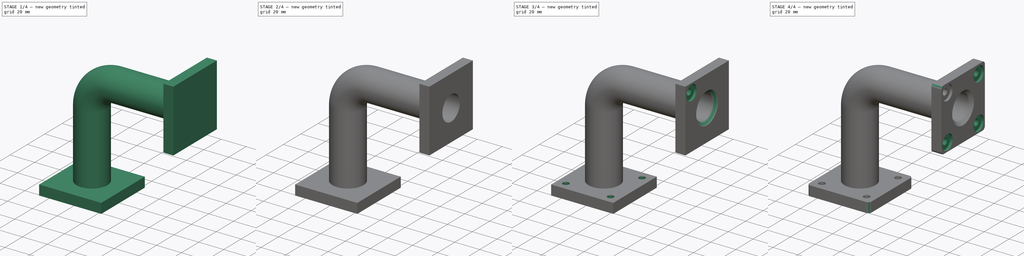
[diagram: build sequence overview — one tinted view per stage of 4, left to right]
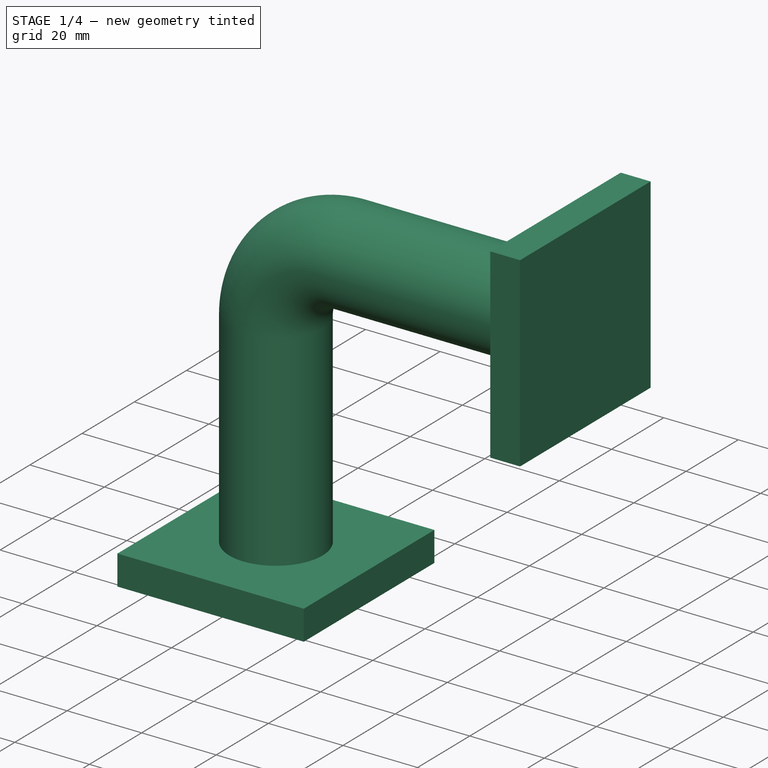
[diagram: stage 1 of 4 — iso view after this stage's code; geometry added in this stage tinted green]
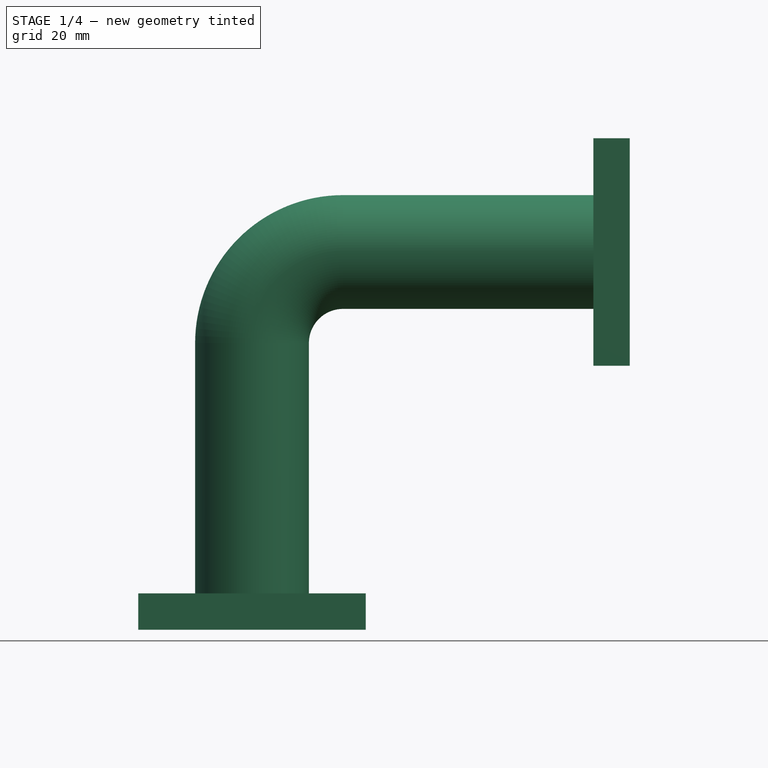
[diagram: stage 1 of 4 — front view after this stage's code; geometry added in this stage tinted green]
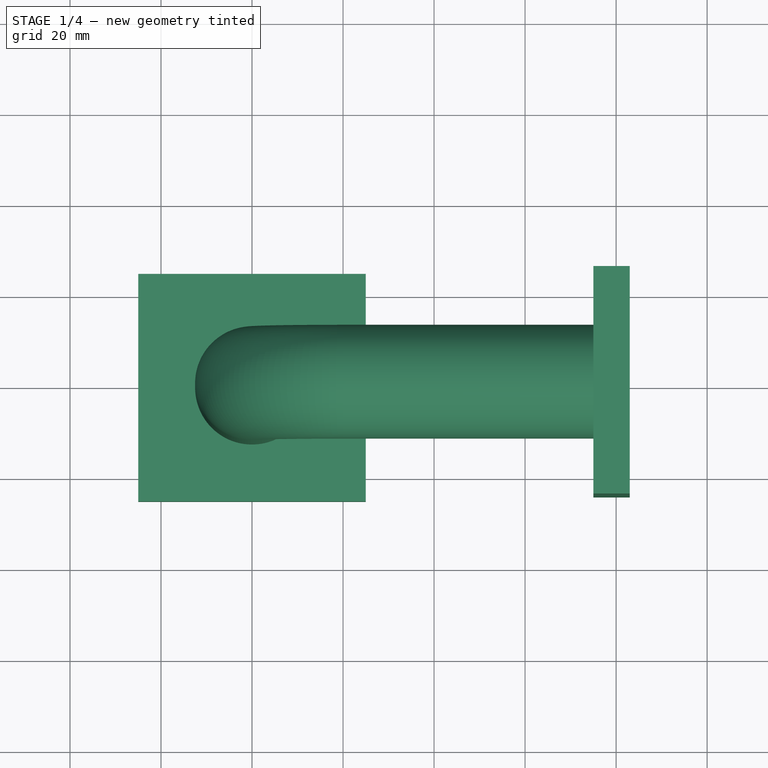
[diagram: stage 1 of 4 — top view after this stage's code; geometry added in this stage tinted green]
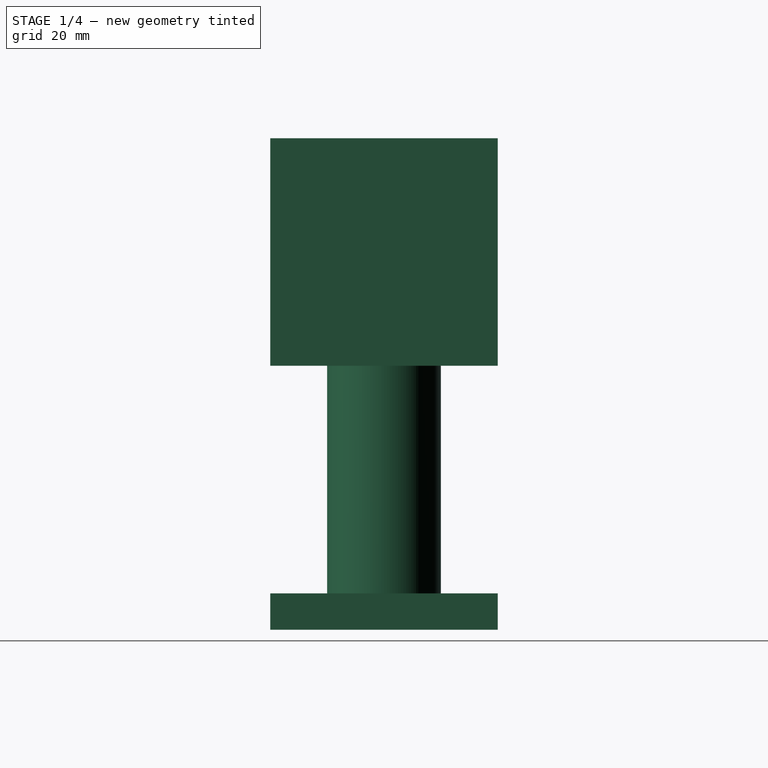
[diagram: stage 1 of 4 — right view after this stage's code; geometry added in this stage tinted green]
FCSTD DOCUMENT  (FreeCAD 1.0R39319 (Git))
Label: Elbow_Pipe_using_spreedsheet
License: All rights reserved
LicenseURL: https://en.wikipedia.org/wiki/All_rights_reserved
objects: Sketcher::SketchObject×12, PartDesign::Pocket×4, PartDesign::Pad×2, PartDesign::Chamfer×2, PartDesign::Hole×2, Spreadsheet::Sheet×1, PartDesign::AdditivePipe×1, PartDesign::PolarPattern×1, PartDesign::Fillet×1, PartDesign::Body×1
note: 63 computed .brp shape members not serialized (recipe doc carries the construction recipe); baked Part::Feature solids carry a one-line shape summary decoded from their .brp

FEATURE [Spreadsheet::Sheet] Spreadsheet  label="Dimention_sheet"
  cells = A1='flange_side; B1(flange_side)=50; A2='flange_thickness; B2(flange_thickness)=8; A3='flange_center_innercircle; B3(flange_center_innercircle)=20; A4='flange_center_outercircle; B4(flange_center_outercircle)=25; A5='mount_Thrededhole_dia; B5(mount_Thrededhole_dia)=5; A6='mountcounterbore_dia; B6(mountcounterbore_dia)=12; A7='pipe_pathdis; B7(pipe_pathdis)=75; A8='pipe_path_fillet_rad; B8(pipe_path_fillet_rad)=20; A9='mount_hole_centerdis; B9(mount_hole_centerdis)=7; A10='mountcounterbore_depth; B10(mountcounterbore_depth)==0.25 * B2; A11='mounthole_depth; B11(mounthole_depth)==B2; A12='pipe_depth; B12(pipe_depth)==B2; A13='flange_fillet_radius; B13(flange_fillet_radius)=2.5; A14='pipe_center_chamfer_dis; B14(pipe_center_chamfer_dis)=2.5
FEATURE [Sketcher::SketchObject] Sketch
  ArcFitTolerance = 1e-06
  AttachmentSupport = -> [XY_Plane]
  FullyConstrained = true
  MakeInternals = false
  MapMode = 5
  expr: Constraints[11] = <<Dimention_sheet>>.flange_side
  sketch-geometry (5):
    g0: LineSegment StartX=25 StartY=-25 StartZ=0 EndX=25 EndY=25 EndZ=0
    g1: LineSegment StartX=25 StartY=25 StartZ=0 EndX=-25 EndY=25 EndZ=0
    g2: LineSegment StartX=-25 StartY=25 StartZ=0 EndX=-25 EndY=-25 EndZ=0
    g3: LineSegment StartX=-25 StartY=-25 StartZ=0 EndX=25 EndY=-25 EndZ=0
    g4: GeomPoint [constr] X=0 Y=0 Z=0
  constraints (12):
    c: Coincident(g0,g1)
    c: Coincident(g1,g2)
    c: Coincident(g2,g3)
    c: Coincident(g3,g0)
    c: Vertical(g0)
    c: Vertical(g2)
    c: Horizontal(g1)
    c: Horizontal(g3)
    c: Symmetric(g2,g0,g4)
    c: Coincident(g4,g-1)
    c: Equal(g2,g1)
    c: DistanceY(g2,g2) = 50
FEATURE [PartDesign::Pad] Pad
  Direction = (0,0,1)
  Length = 8
  Length2 = 10
  Profile = -> Sketch
  ReferenceAxis = -> Sketch [N_Axis]
  Refine = true
  Suppressed = false
  Type = 0
  expr: Length = <<Dimention_sheet>>.flange_thickness
FEATURE [Sketcher::SketchObject] Sketch001
  ArcFitTolerance = 1e-06
  AttachmentSupport = -> [Pad]
  FullyConstrained = true
  MakeInternals = false
  MapMode = 5
  Placement = pos=(0,0,8) rot=(0,0,1;0rad)
  expr: Constraints[2] = <<Dimention_sheet>>.flange_center_outercircle
  expr: Constraints[3] = <<Dimention_sheet>>.flange_center_innercircle
  sketch-geometry (2):
    g0: Circle CenterX=0 CenterY=0 CenterZ=0 NormalX=0 NormalY=0 NormalZ=1 AngleXU=0 Radius=12.5
    g1: Circle CenterX=0 CenterY=0 CenterZ=0 NormalX=0 NormalY=0 NormalZ=1 AngleXU=0 Radius=10
  constraints (4):
    c: Coincident(g0,g-1)
    c: Coincident(g1,g0)
    c: Diameter(g0) = 25
    c: Diameter(g1) = 20
FEATURE [Sketcher::SketchObject] Sketch002
  ArcFitTolerance = 1e-06
  AttachmentSupport = -> [XZ_Plane]
  ExternalGeometry = -> [Sketch001]
  FullyConstrained = true
  MakeInternals = false
  MapMode = 5
  Placement = pos=(0,0,0) rot=(1,0,0;1.5708rad)
  expr: Constraints[3] = <<Dimention_sheet>>.pipe_pathdis
  expr: Constraints[8] = <<Dimention_sheet>>.pipe_pathdis
  expr: Constraints[9] = <<Dimention_sheet>>.pipe_path_fillet_rad
  sketch-geometry (4):
    g0: LineSegment StartX=3e-16 StartY=8 StartZ=0 EndX=0 EndY=63 EndZ=0
    g1: LineSegment StartX=20 StartY=83 StartZ=0 EndX=75 EndY=83 EndZ=0
    g2: ArcOfCircle CenterX=20 CenterY=63 CenterZ=0 NormalX=0 NormalY=0 NormalZ=1 AngleXU=0 Radius=20 StartAngle=1.5708 EndAngle=3.14159
    g3: GeomPoint [constr] X=0 Y=83 Z=0
  constraints (10):
    c: Symmetric(g-3,g-3,g0)
    c: PointOnObject(g3,g-2)
    c: Horizontal(g1)
    c: DistanceY(g0,g3) = 75
    c: PointOnObject(g3,g1)
    c: PointOnObject(g3,g0)
    c: Tangent(g1,g2) = 1.5708
    c: Tangent(g0,g2) = 1.5708
    c: DistanceX(g3,g1) = 75
    c: Radius(g2) = 20
FEATURE [PartDesign::AdditivePipe] AdditivePipe
  AuxilleryCurvelinear = true
  AuxillerySpineTangent = false
  BaseFeature = -> Pad
  Binormal = (0,0,0)
  Mode = 0
  Profile = -> Sketch001
  Refine = true
  Spine = -> Sketch002
  SpineTangent = false
  Suppressed = false
  Transformation = 0
  Transition = 0
FEATURE [Sketcher::SketchObject] Sketch003
  ArcFitTolerance = 1e-06
  AttachmentSupport = -> [AdditivePipe]
  ExternalGeometry = -> [AdditivePipe]
  FullyConstrained = true
  MakeInternals = false
  MapMode = 5
  Placement = pos=(75,0,0) rot=(0.57735,0.57735,0.57735;2.0944rad)
  expr: Constraints[11] = <<Dimention_sheet>>.flange_side
  sketch-geometry (5):
    g0: LineSegment StartX=25 StartY=58 StartZ=0 EndX=25 EndY=108 EndZ=0
    g1: LineSegment StartX=25 StartY=108 StartZ=0 EndX=-25 EndY=108 EndZ=0
    g2: LineSegment StartX=-25 StartY=108 StartZ=0 EndX=-25 EndY=58 EndZ=0
    g3: LineSegment StartX=-25 StartY=58 StartZ=0 EndX=25 EndY=58 EndZ=0
    g4: GeomPoint [constr] X=1.68e-14 Y=83 Z=0
  constraints (12):
    c: Coincident(g0,g1)
    c: Coincident(g1,g2)
    c: Coincident(g2,g3)
    c: Coincident(g3,g0)
    c: Vertical(g0)
    c: Vertical(g2)
    c: Horizontal(g1)
    c: Horizontal(g3)
    c: Symmetric(g2,g0,g4)
    c: Coincident(g4,g-3)
    c: Equal(g1,g2)
    c: DistanceY(g2,g2) = 50
FEATURE [PartDesign::Pad] Pad001
  BaseFeature = -> AdditivePipe
  Direction = (1,0,0)
  Length = 8
  Length2 = 10
  Profile = -> Sketch003
  ReferenceAxis = -> Sketch003 [N_Axis]
  Refine = true
  Suppressed = false
  Type = 0
  expr: Length = <<Dimention_sheet>>.flange_thickness
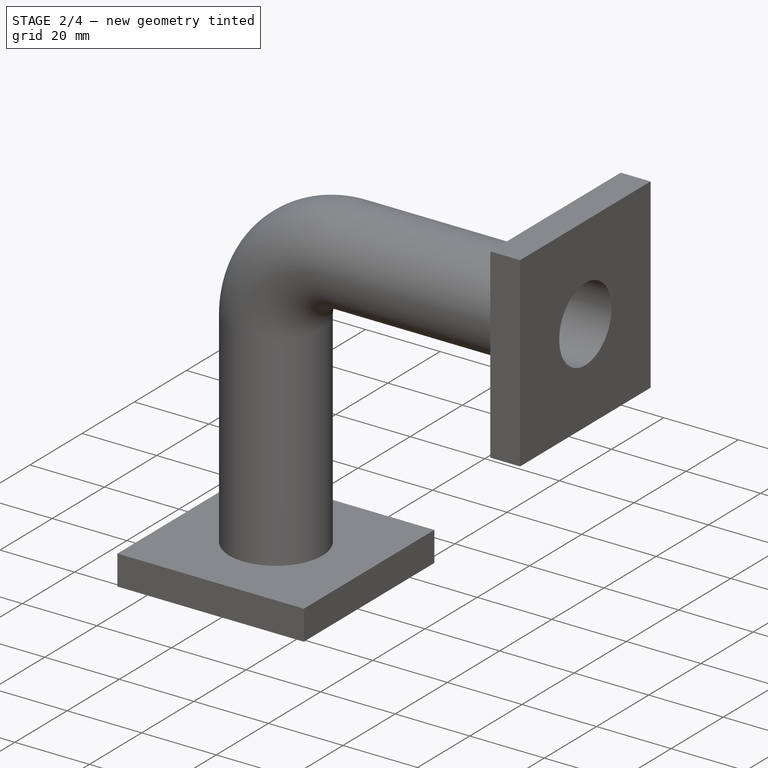
[diagram: stage 2 of 4 — iso view after this stage's code; geometry added in this stage tinted green]
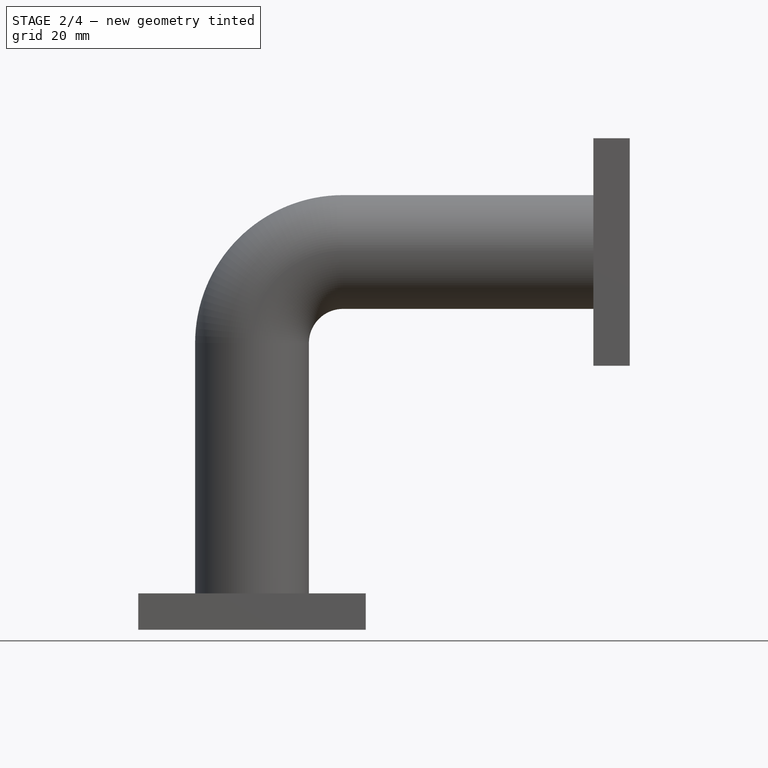
[diagram: stage 2 of 4 — front view after this stage's code; geometry added in this stage tinted green]
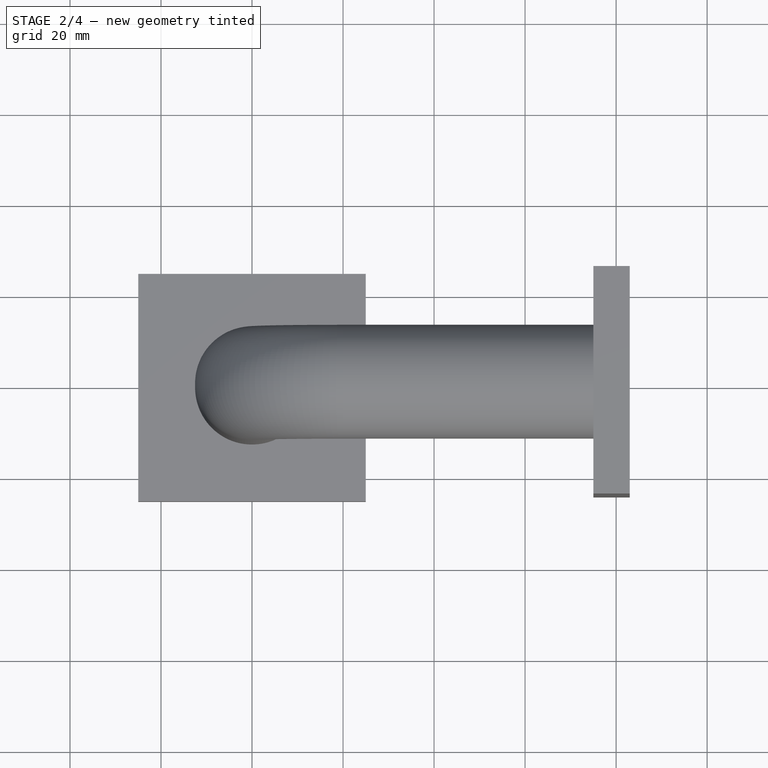
[diagram: stage 2 of 4 — top view after this stage's code; geometry added in this stage tinted green]
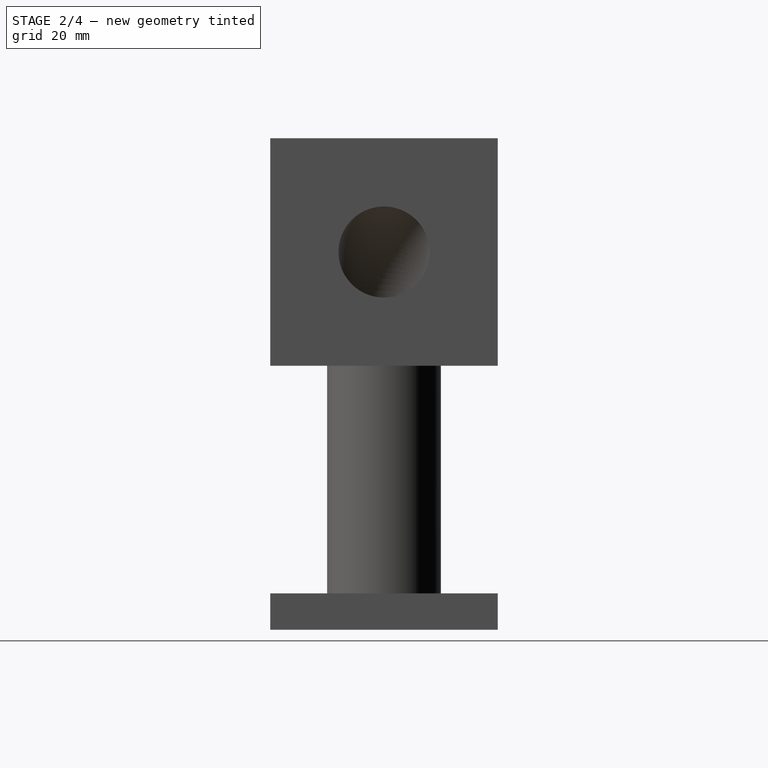
[diagram: stage 2 of 4 — right view after this stage's code; geometry added in this stage tinted green]
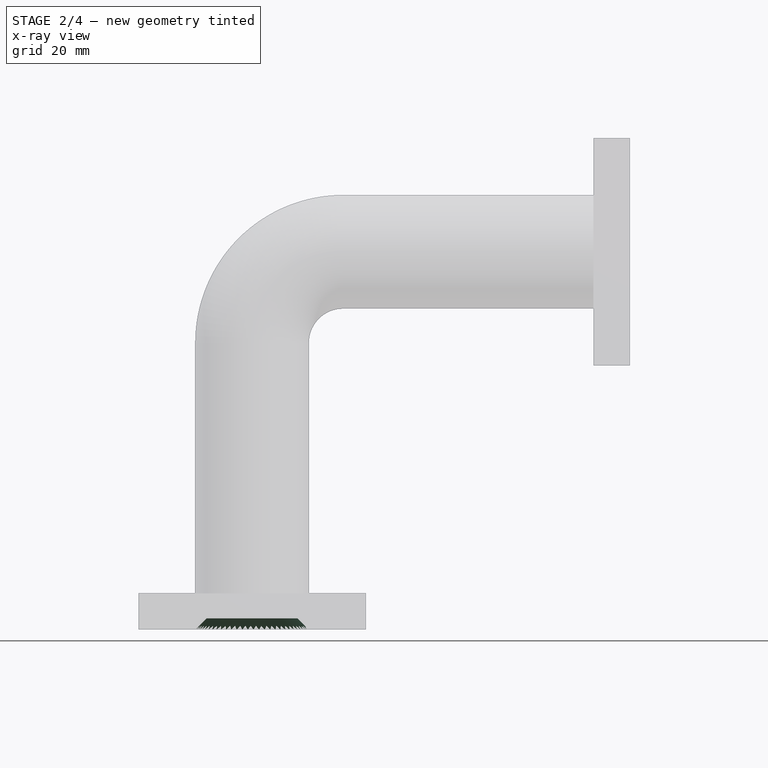
[diagram: stage 2 of 4 — x-ray composite at the front view; earlier geometry ghosted, this stage's added geometry solid]
FEATURE [Sketcher::SketchObject] Sketch005
  ArcFitTolerance = 1e-06
  AttachmentSupport = -> [Pad001]
  ExternalGeometry = -> [Pad001]
  FullyConstrained = true
  MakeInternals = false
  MapMode = 5
  Placement = pos=(83,0,0) rot=(0.57735,0.57735,0.57735;2.0944rad)
  expr: Constraints[1] = <<Dimention_sheet>>.flange_center_innercircle
  sketch-geometry (1):
    g0: Circle CenterX=1.28e-14 CenterY=83 CenterZ=0 NormalX=0 NormalY=0 NormalZ=1 AngleXU=0 Radius=10
  constraints (2):
    c: Symmetric(g-4,g-6,g0)
    c: Diameter(g0) = 20
FEATURE [PartDesign::Pocket] Pocket
  BaseFeature = -> Pad001
  Direction = (-1,0,0)
  Length = 8
  Length2 = 5
  Profile = -> Sketch005
  ReferenceAxis = -> Sketch005 [N_Axis]
  Refine = true
  Suppressed = false
  Type = 0
  expr: Length = <<Dimention_sheet>>.pipe_depth
FEATURE [Sketcher::SketchObject] Sketch006
  ArcFitTolerance = 1e-06
  AttachmentSupport = -> [Pocket]
  FullyConstrained = true
  MakeInternals = false
  MapMode = 5
  Placement = pos=(0,0,0) rot=(1,0,0;3.14159rad)
  expr: Constraints[1] = <<Dimention_sheet>>.flange_center_innercircle
  sketch-geometry (1):
    g0: Circle CenterX=0 CenterY=0 CenterZ=0 NormalX=0 NormalY=0 NormalZ=1 AngleXU=0 Radius=10
  constraints (2):
    c: Coincident(g0,g-1)
    c: Diameter(g0) = 20
FEATURE [PartDesign::Pocket] Pocket001
  BaseFeature = -> Pocket
  Direction = (0,0,1)
  Length = 8
  Length2 = 5
  Profile = -> Sketch006
  ReferenceAxis = -> Sketch006 [N_Axis]
  Refine = true
  Suppressed = false
  Type = 0
  expr: Length = <<Dimention_sheet>>.pipe_depth
FEATURE [Sketcher::SketchObject] Sketch007
  ArcFitTolerance = 1e-06
  AttachmentSupport = -> [Pocket001]
  FullyConstrained = true
  MakeInternals = false
  MapMode = 5
  Placement = pos=(0,0,0) rot=(1,0,0;3.14159rad)
FEATURE [PartDesign::Chamfer] Chamfer
  Angle = 45
  Base = -> Pocket001 [Edge5]
  BaseFeature = -> Pocket001
  ChamferType = 0
  FlipDirection = false
  Refine = true
  Size = 2.5
  Size2 = 1
  SupportTransform = false
  Suppressed = false
  UseAllEdges = false
  expr: Size = <<Dimention_sheet>>.pipe_center_chamfer_dis
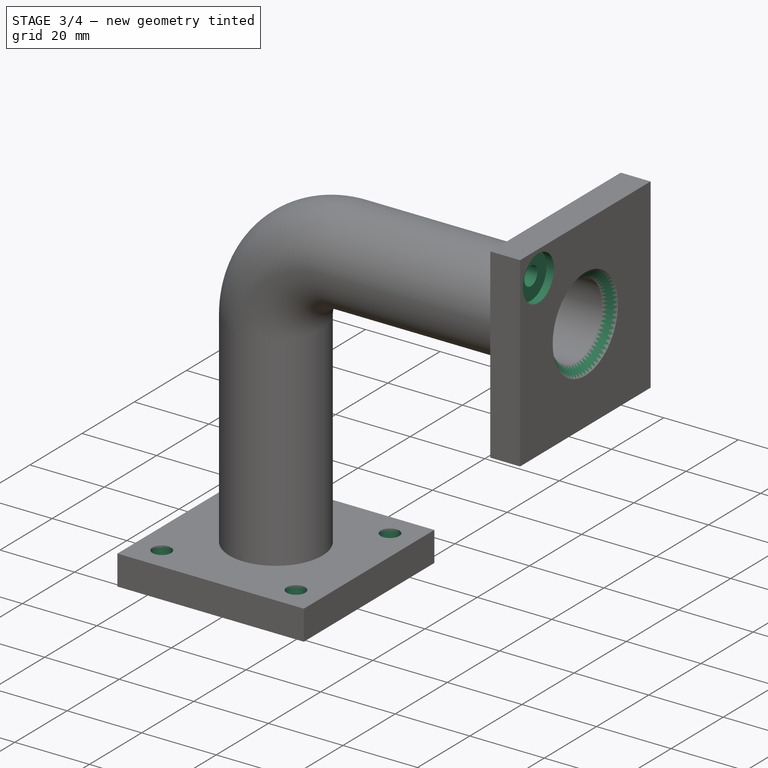
[diagram: stage 3 of 4 — iso view after this stage's code; geometry added in this stage tinted green]
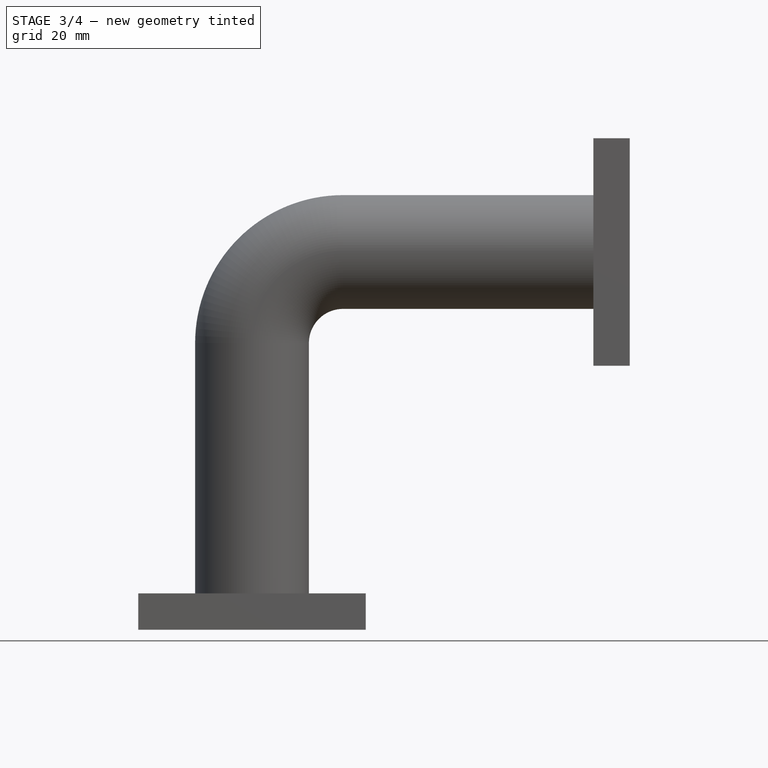
[diagram: stage 3 of 4 — front view after this stage's code; geometry added in this stage tinted green]
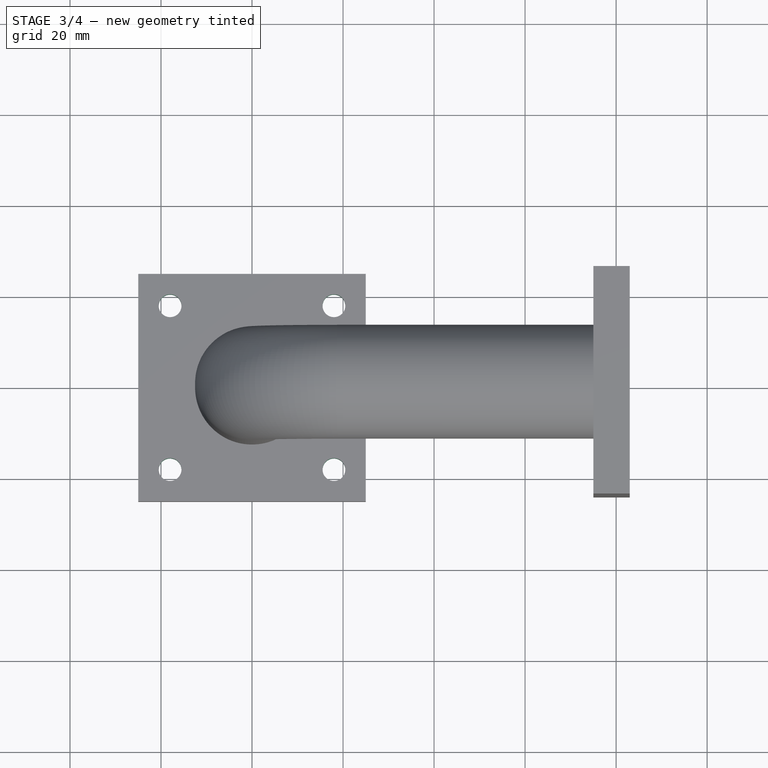
[diagram: stage 3 of 4 — top view after this stage's code; geometry added in this stage tinted green]
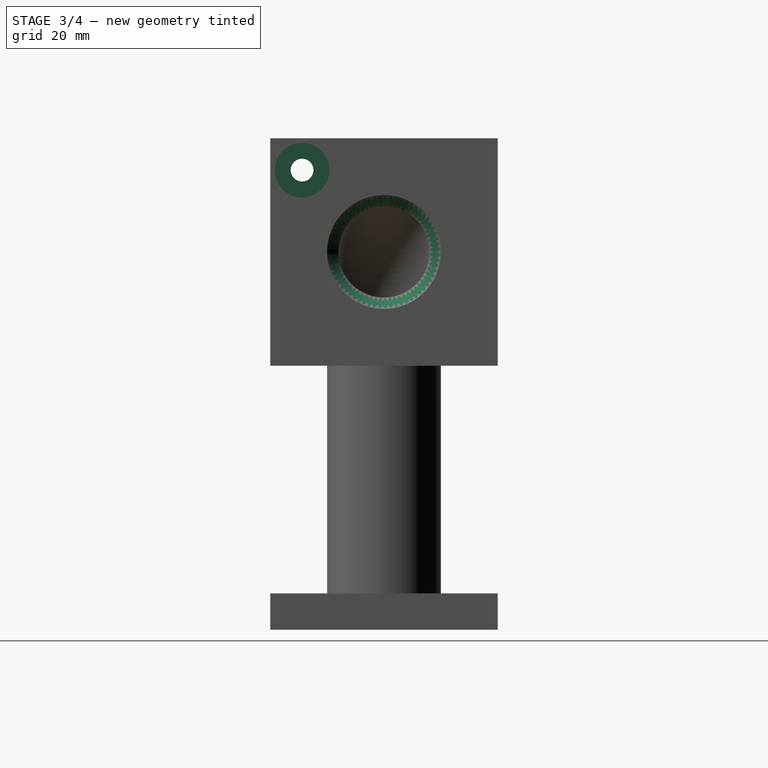
[diagram: stage 3 of 4 — right view after this stage's code; geometry added in this stage tinted green]
FEATURE [PartDesign::Chamfer] Chamfer001
  Angle = 45
  Base = -> Chamfer [Edge25]
  BaseFeature = -> Chamfer
  ChamferType = 0
  FlipDirection = false
  Refine = true
  Size = 2.5
  Size2 = 1
  SupportTransform = false
  Suppressed = false
  UseAllEdges = false
  expr: Size = <<Dimention_sheet>>.pipe_center_chamfer_dis
FEATURE [Sketcher::SketchObject] Sketch008
  ArcFitTolerance = 1e-06
  AttachmentSupport = -> [Chamfer001]
  FullyConstrained = true
  MakeInternals = false
  MapMode = 5
  Placement = pos=(0,0,0) rot=(1,0,0;3.14159rad)
FEATURE [Sketcher::SketchObject] Sketch009
  ArcFitTolerance = 1e-06
  AttachmentSupport = -> [Chamfer001]
  ExternalGeometry = -> [Chamfer001]
  FullyConstrained = false
  MakeInternals = false
  MapMode = 5
  Placement = pos=(0,0,0) rot=(1,0,0;3.14159rad)
  expr: Constraints[0] = <<Dimention_sheet>>.mount_hole_centerdis
  expr: Constraints[1] = <<Dimention_sheet>>.mount_hole_centerdis
  sketch-geometry (1):
    g0: Circle CenterX=-18 CenterY=18 CenterZ=0 NormalX=0 NormalY=0 NormalZ=1 AngleXU=0 Radius=1.95036
  constraints (2):
    c: Distance(g0,g-3) = 7
    c: Distance(g0,g-4) = 7
FEATURE [PartDesign::Hole] Hole
  BaseFeature = -> Chamfer001
  CustomThreadClearance = 0
  Depth = 8
  DepthType = 0
  Diameter = 4.224
  DrillForDepth = false
  DrillPoint = 1
  DrillPointAngle = 118
  HoleCutCountersinkAngle = 90
  HoleCutCustomValues = false
  HoleCutDepth = 2
  HoleCutDiameter = 12
  HoleCutType = 1
  ModelThread = true
  Profile = -> Sketch009
  Refine = true
  Suppressed = false
  Tapered = false
  TaperedAngle = 90
  ThreadClass = 0
  ThreadDepth = 8
  ThreadDepthType = 0
  ThreadDirection = 0
  ThreadFit = 0
  ThreadSize = 13
  ThreadType = 1
  Threaded = true
  UseCustomThreadClearance = false
  expr: Depth = <<Dimention_sheet>>.mounthole_depth
  expr: Diameter = <<Dimention_sheet>>.mount_Thrededhole_dia
  expr: HoleCutDepth = <<Dimention_sheet>>.mountcounterbore_depth
  expr: HoleCutDiameter = <<Dimention_sheet>>.mountcounterbore_dia
FEATURE [PartDesign::PolarPattern] PolarPattern
  Angle = 360
  Axis = -> Sketch009 [N_Axis]
  BaseFeature = -> Hole
  Mode = 0
  Occurrences = 4
  Offset = 120
  Originals = -> [Hole]
  Refine = true
  Suppressed = false
  TransformMode = 0
FEATURE [Sketcher::SketchObject] Sketch010
  ArcFitTolerance = 1e-06
  AttachmentSupport = -> [PolarPattern]
  ExternalGeometry = -> [PolarPattern]
  FullyConstrained = true
  MakeInternals = false
  MapMode = 5
  Placement = pos=(83,0,0) rot=(0.57735,0.57735,0.57735;2.0944rad)
  expr: Constraints[0] = <<Dimention_sheet>>.mount_hole_centerdis
  expr: Constraints[1] = <<Dimention_sheet>>.mount_hole_centerdis
  expr: Constraints[2] = <<Dimention_sheet>>.mount_Thrededhole_dia
  sketch-geometry (1):
    g0: Circle CenterX=-18 CenterY=101 CenterZ=0 NormalX=0 NormalY=0 NormalZ=1 AngleXU=0 Radius=2.5
  constraints (3):
    c: Distance(g0,g-4) = 7
    c: Distance(g0,g-3) = 7
    c: Diameter(g0) = 5
FEATURE [PartDesign::Hole] Hole001
  BaseFeature = -> PolarPattern
  CustomThreadClearance = 0
  Depth = 25
  DepthType = 0
  Diameter = 5
  DrillForDepth = false
  DrillPoint = 1
  DrillPointAngle = 118
  HoleCutCountersinkAngle = 90
  HoleCutCustomValues = false
  HoleCutDepth = 2
  HoleCutDiameter = 12
  HoleCutType = 1
  ModelThread = true
  Profile = -> Sketch010
  Refine = true
  Suppressed = false
  Tapered = false
  TaperedAngle = 90
  ThreadClass = 0
  ThreadDepth = 25
  ThreadDepthType = 0
  ThreadDirection = 0
  ThreadFit = 0
  ThreadSize = 13
  ThreadType = 1
  Threaded = true
  UseCustomThreadClearance = false
  expr: Diameter = <<Dimention_sheet>>.mount_Thrededhole_dia
  expr: HoleCutDepth = <<Dimention_sheet>>.mountcounterbore_depth
  expr: HoleCutDiameter = <<Dimention_sheet>>.mountcounterbore_dia
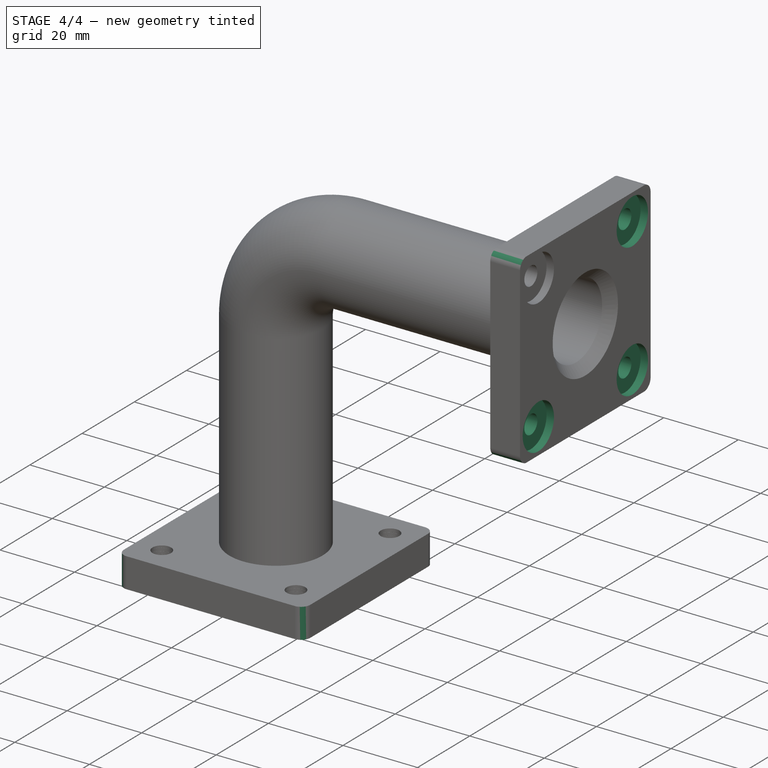
[diagram: stage 4 of 4 — iso view after this stage's code; geometry added in this stage tinted green]
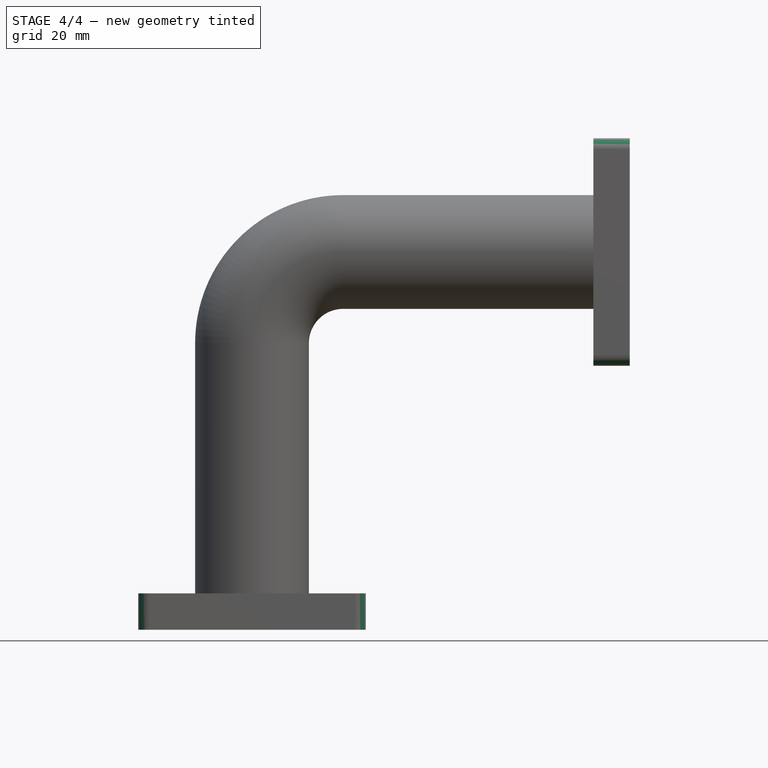
[diagram: stage 4 of 4 — front view after this stage's code; geometry added in this stage tinted green]
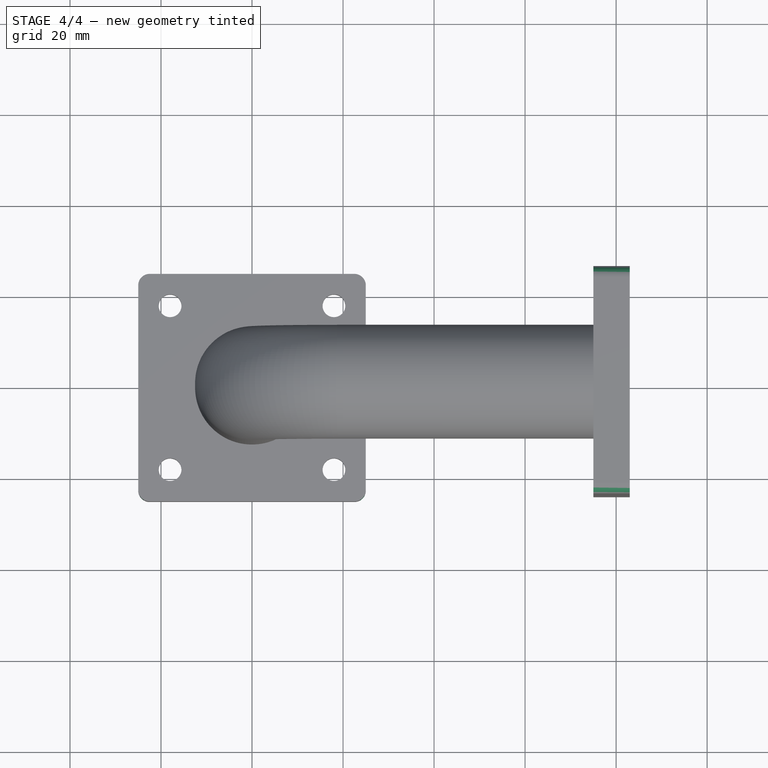
[diagram: stage 4 of 4 — top view after this stage's code; geometry added in this stage tinted green]
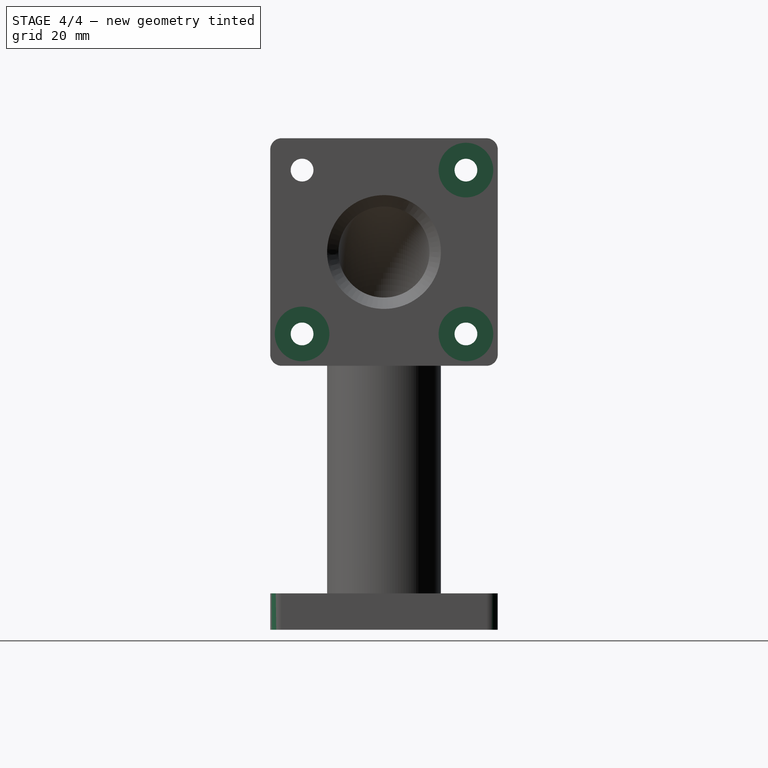
[diagram: stage 4 of 4 — right view after this stage's code; geometry added in this stage tinted green]
FEATURE [Sketcher::SketchObject] Sketch011
  ArcFitTolerance = 1e-06
  AttachmentSupport = -> [Hole001]
  ExternalGeometry = -> [Hole001]
  FullyConstrained = true
  MakeInternals = false
  MapMode = 5
  Placement = pos=(83,0,0) rot=(0.57735,0.57735,0.57735;2.0944rad)
  expr: Constraints[2] = <<Dimention_sheet>>.mount_Thrededhole_dia
  expr: Constraints[3] = <<Dimention_sheet>>.mount_hole_centerdis
  expr: Constraints[4] = <<Dimention_sheet>>.mount_hole_centerdis
  expr: Constraints[5] = <<Dimention_sheet>>.mount_hole_centerdis
  expr: Constraints[6] = <<Dimention_sheet>>.mount_hole_centerdis
  expr: Constraints[7] = <<Dimention_sheet>>.mount_hole_centerdis
  expr: Constraints[8] = <<Dimention_sheet>>.mount_hole_centerdis
  sketch-geometry (3):
    g0: Circle CenterX=18 CenterY=101 CenterZ=0 NormalX=0 NormalY=0 NormalZ=1 AngleXU=0 Radius=2.5
    g1: Circle CenterX=18 CenterY=65 CenterZ=0 NormalX=0 NormalY=0 NormalZ=1 AngleXU=0 Radius=2.5
    g2: Circle CenterX=-18 CenterY=65 CenterZ=0 NormalX=0 NormalY=0 NormalZ=1 AngleXU=0 Radius=2.5
  constraints (9):
    c: Equal(g0,g1)
    c: Equal(g0,g2)
    c: Diameter(g0) = 5
    c: Distance(g0,g-3) = 7
    c: Distance(g0,g-6) = 7
    c: Distance(g1,g-6) = 7
    c: Distance(g1,g-4) = 7
    c: Distance(g2,g-5) = 7
    c: Distance(g2,g-4) = 7
FEATURE [PartDesign::Pocket] Pocket002
  BaseFeature = -> Hole001
  Direction = (-1,0,0)
  Length = 8
  Length2 = 5
  Profile = -> Sketch011
  ReferenceAxis = -> Sketch011 [N_Axis]
  Refine = true
  Suppressed = false
  Type = 0
  expr: Length = <<Dimention_sheet>>.mounthole_depth
FEATURE [Sketcher::SketchObject] Sketch012
  ArcFitTolerance = 1e-06
  AttachmentSupport = -> [Pocket002]
  ExternalGeometry = -> [Pocket002]
  FullyConstrained = true
  MakeInternals = false
  MapMode = 5
  Placement = pos=(83,0,0) rot=(0.57735,0.57735,0.57735;2.0944rad)
  expr: Constraints[5] = <<Dimention_sheet>>.mountcounterbore_dia
  sketch-geometry (3):
    g0: Circle CenterX=-18 CenterY=65 CenterZ=0 NormalX=0 NormalY=0 NormalZ=1 AngleXU=0 Radius=6
    g1: Circle CenterX=18 CenterY=65 CenterZ=0 NormalX=0 NormalY=0 NormalZ=1 AngleXU=0 Radius=6
    g2: Circle CenterX=18 CenterY=101 CenterZ=0 NormalX=0 NormalY=0 NormalZ=1 AngleXU=0 Radius=6
  constraints (6):
    c: Coincident(g0,g-5)
    c: Coincident(g1,g-4)
    c: Coincident(g2,g-3)
    c: Equal(g2,g1)
    c: Equal(g2,g0)
    c: Diameter(g2) = 12
FEATURE [PartDesign::Pocket] Pocket003
  BaseFeature = -> Pocket002
  Direction = (-1,0,0)
  Length = 2
  Length2 = 5
  Profile = -> Sketch012
  ReferenceAxis = -> Sketch012 [N_Axis]
  Refine = true
  Suppressed = false
  Type = 0
  expr: Length = <<Dimention_sheet>>.mountcounterbore_depth
FEATURE [PartDesign::Fillet] Fillet
  Base = -> Pocket003 [Edge19,Edge22,Edge20,Edge24,Edge88,Edge87,Edge92,Edge90]
  BaseFeature = -> Pocket003
  Radius = 2.5
  Refine = true
  SupportTransform = false
  Suppressed = false
  UseAllEdges = false
  expr: Radius = <<Dimention_sheet>>.flange_fillet_radius
FEATURE [PartDesign::Body] Body
  AllowCompound = false
  Group = -> [Sketch,Pad,Sketch001,Sketch002,AdditivePipe,Sketch003,Pad001,Sketch005,Pocket,Sketch006,Pocket001,Sketch007,Chamfer,Chamfer001,Sketch008,Sketch009,Hole,PolarPattern,Sketch010,Hole001,Sketch011,Pocket002,Sketch012,Pocket003,Fillet]
  Origin = -> Origin
  Tip = -> Fillet
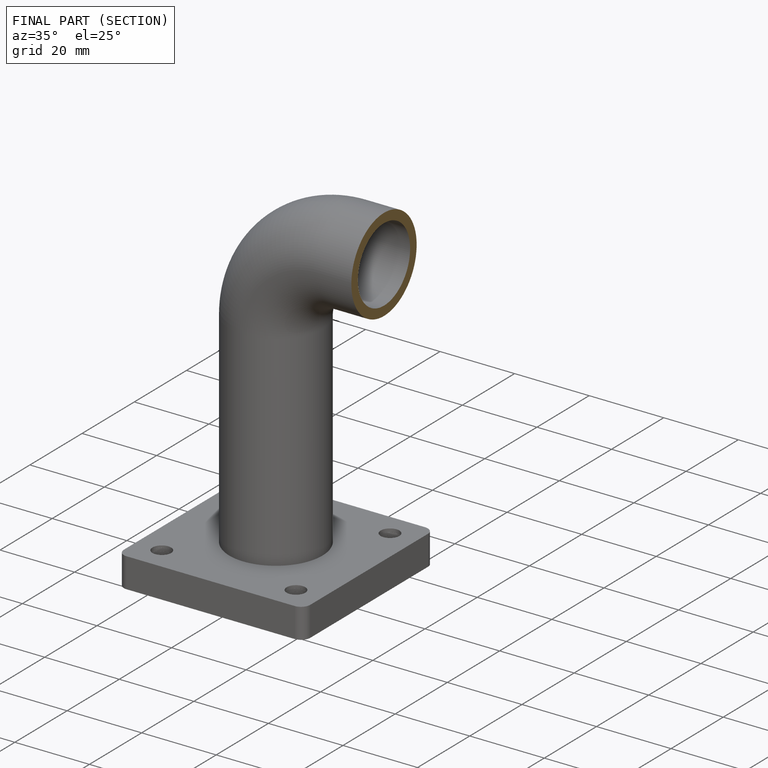
[diagram: finished part — half-section view (interior)]
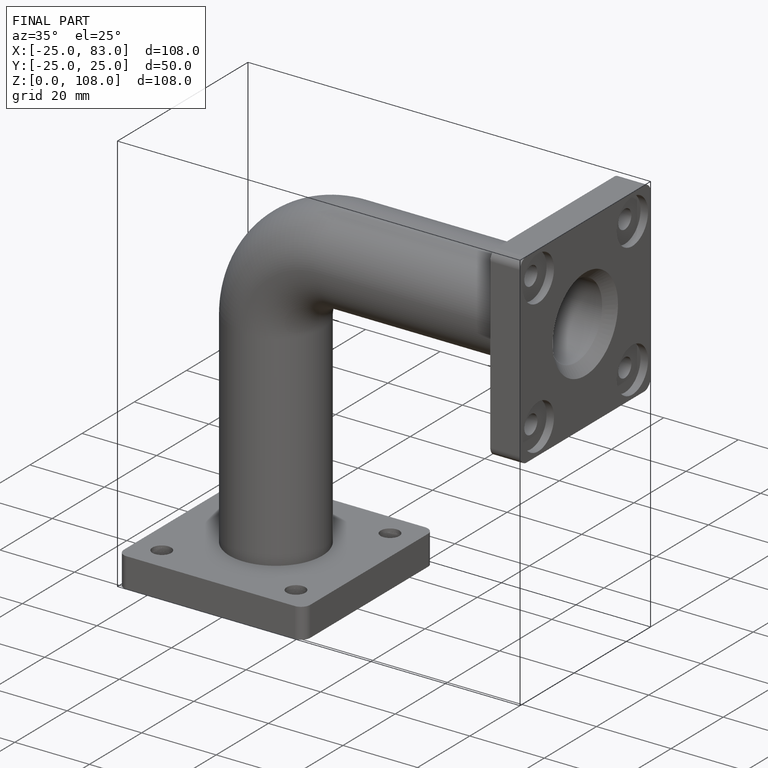
[diagram: finished part — iso view with bounding-box wireframe]
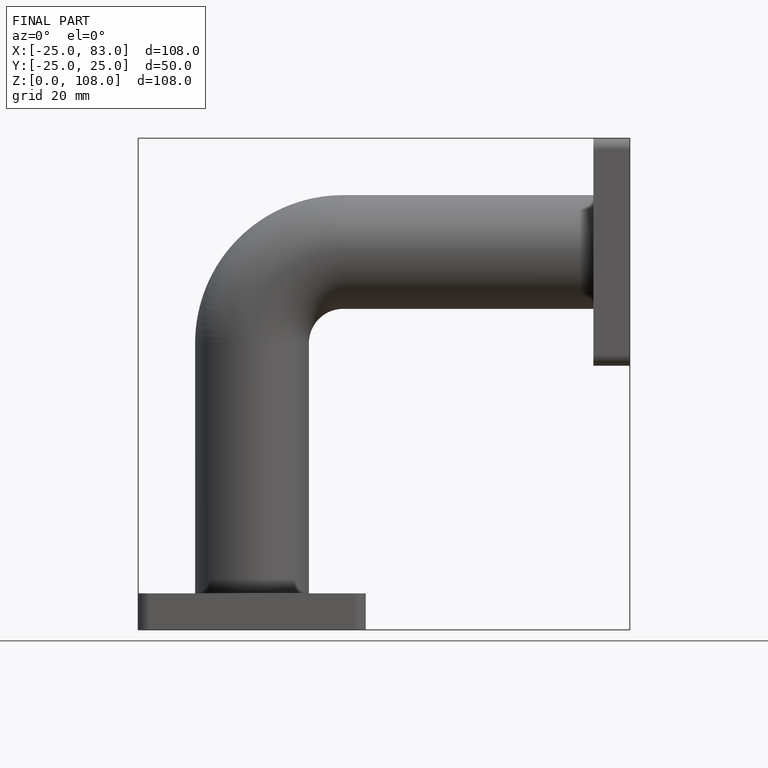
[diagram: finished part — front view with bounding-box wireframe]
